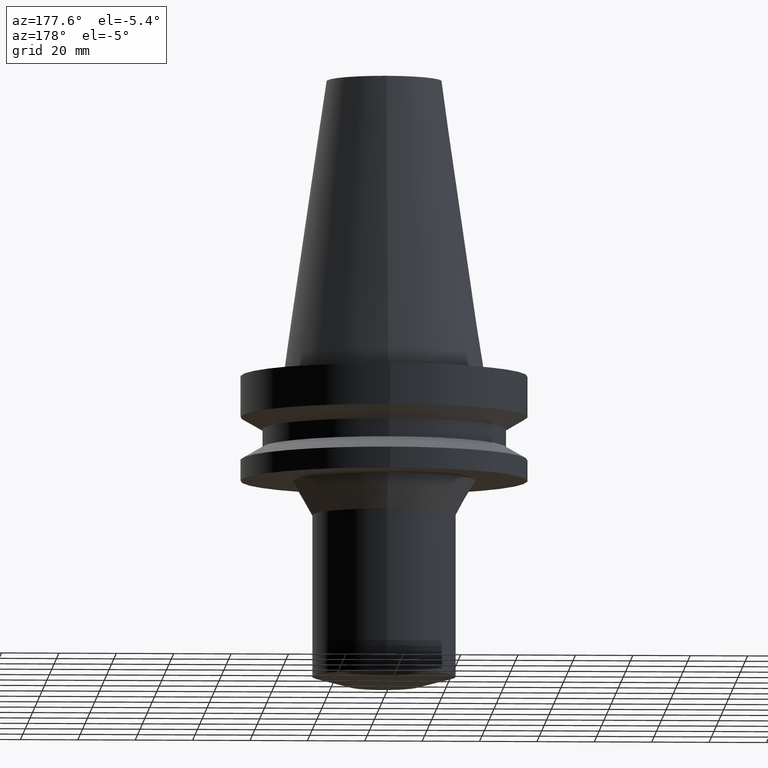
[diagram: clean part render]
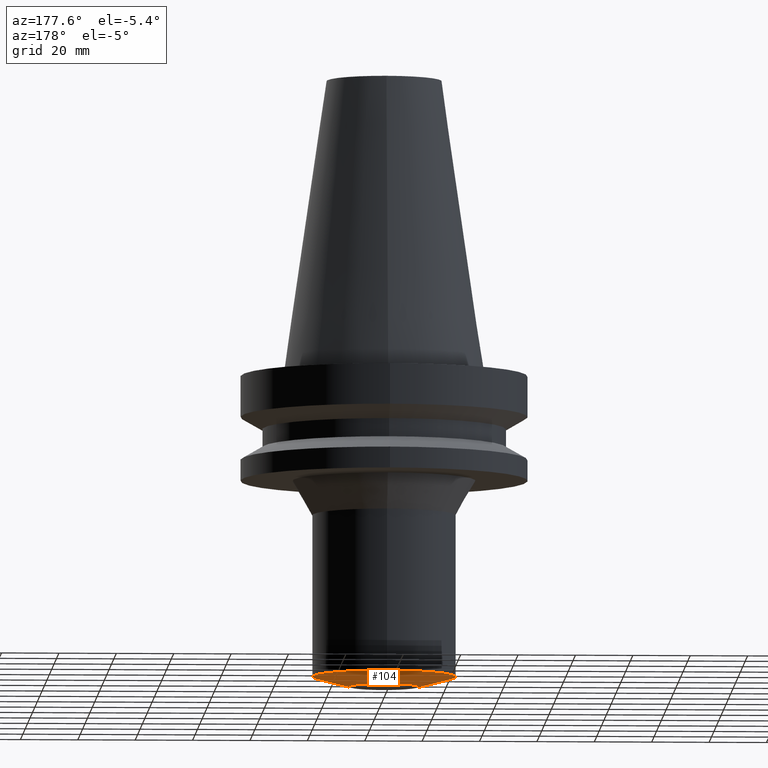
[diagram: same view with one face highlighted and labeled with its STEP entity id]
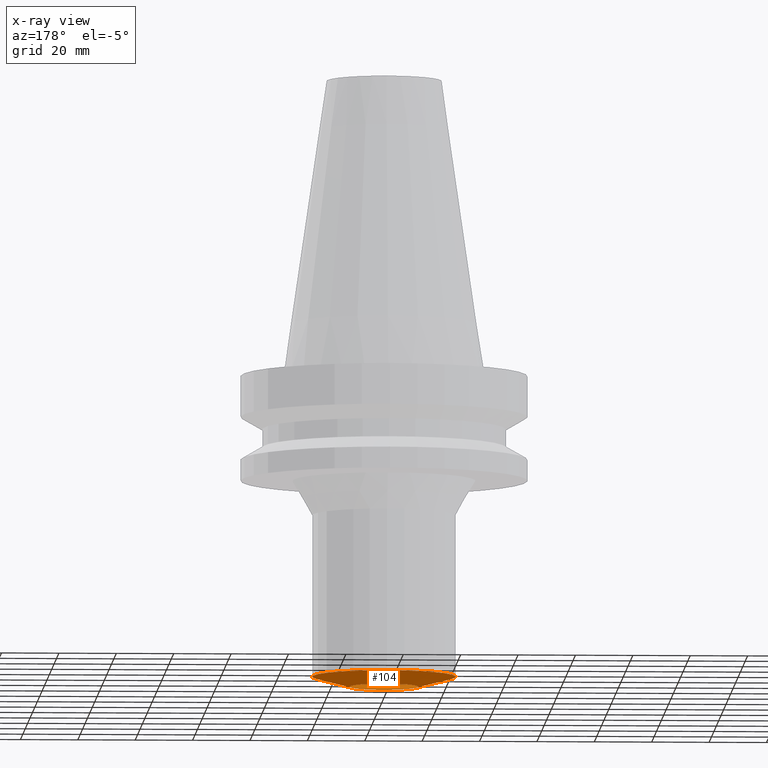
[diagram: x-ray of the same camera — body ghosted, the highlighted face saturated]
A machine part, auxiliary view. The second image highlights one B-rep face of the part: STEP entity #104.
The next image is the same camera in x-ray: the body ghosted, the highlighted face saturated — about 3% of this face is hidden behind the body in this view.
In plain terms, the highlighted conical surface has half-angle 75 deg.
Its self-contained STEP definition (entity closure, byte-faithful):
#85=EDGE_CURVE('Unnamed[1]',#191,#191,#192,.T.);
#104=ADVANCED_FACE('Unnamed[1]',(#221,#222),#223,.T.);
#109=EDGE_CURVE('Unnamed[1]',#229,#229,#230,.T.);
#191=VERTEX_POINT('',#321);
#192=CIRCLE('',#322,24.9999999999974);
#221=FACE_BOUND('',#358,.T.);
#222=FACE_BOUND('',#359,.T.);
#223=CONICAL_SURFACE('',#360,18.4999999999994,1.30899693899576);
#229=VERTEX_POINT('',#368);
#230=CIRCLE('',#369,12.0000000000013);
#321=CARTESIAN_POINT('',(6.52226436676132E-015,24.9999999999974,-106.516660498396));
#322=AXIS2_PLACEMENT_3D('',#451,#452,#453);
#358=EDGE_LOOP('',(#485));
#359=EDGE_LOOP('',(#486));
#360=AXIS2_PLACEMENT_3D('',#487,#488,#489);
#368=CARTESIAN_POINT('',(6.73555739531042E-015,12.0000000000014,-110.0));
#369=AXIS2_PLACEMENT_3D('',#495,#496,#497);
#451=CARTESIAN_POINT('',(6.52226436676132E-015,1.41123987526594E-014,-106.516660498396));
#452=DIRECTION('',(6.12323399573676E-017,1.27566376151383E-016,-1.0));
#453=DIRECTION('',(-1.26383404424082E-032,1.0,1.27566376151383E-016));
#485=ORIENTED_EDGE('',*,*,#109,.F.);
#486=ORIENTED_EDGE('',*,*,#85,.T.);
#487=CARTESIAN_POINT('',(6.62891088103587E-015,1.43345772512217E-014,-108.258330249198));
#488=DIRECTION('',(-6.12323399573676E-017,-1.27566376151465E-016,1.0));
#489=DIRECTION('',(-1.26383404424063E-032,1.0,1.27566376151465E-016));
#495=CARTESIAN_POINT('',(6.73555739531042E-015,1.4556755749784E-014,-110.0));
#496=DIRECTION('',(6.12323399573677E-017,1.27566376151366E-016,-1.0));
#497=DIRECTION('',(-1.2638340442395E-032,1.0,1.27566376151366E-016));